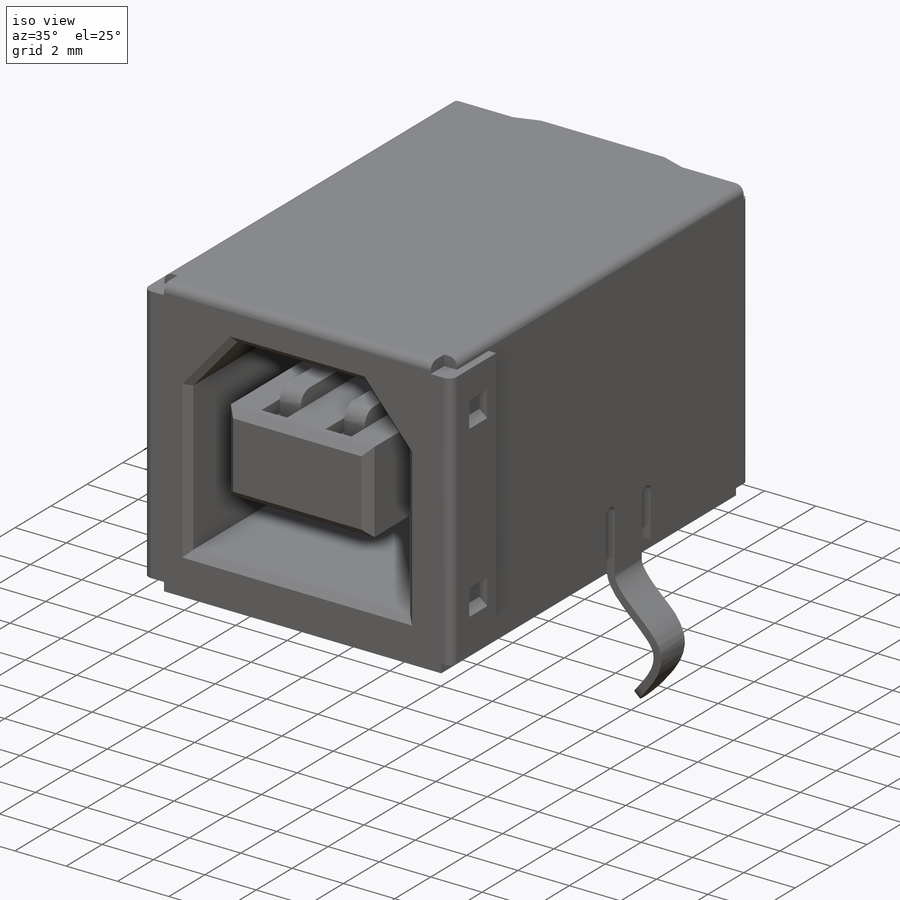
[diagram: iso view]
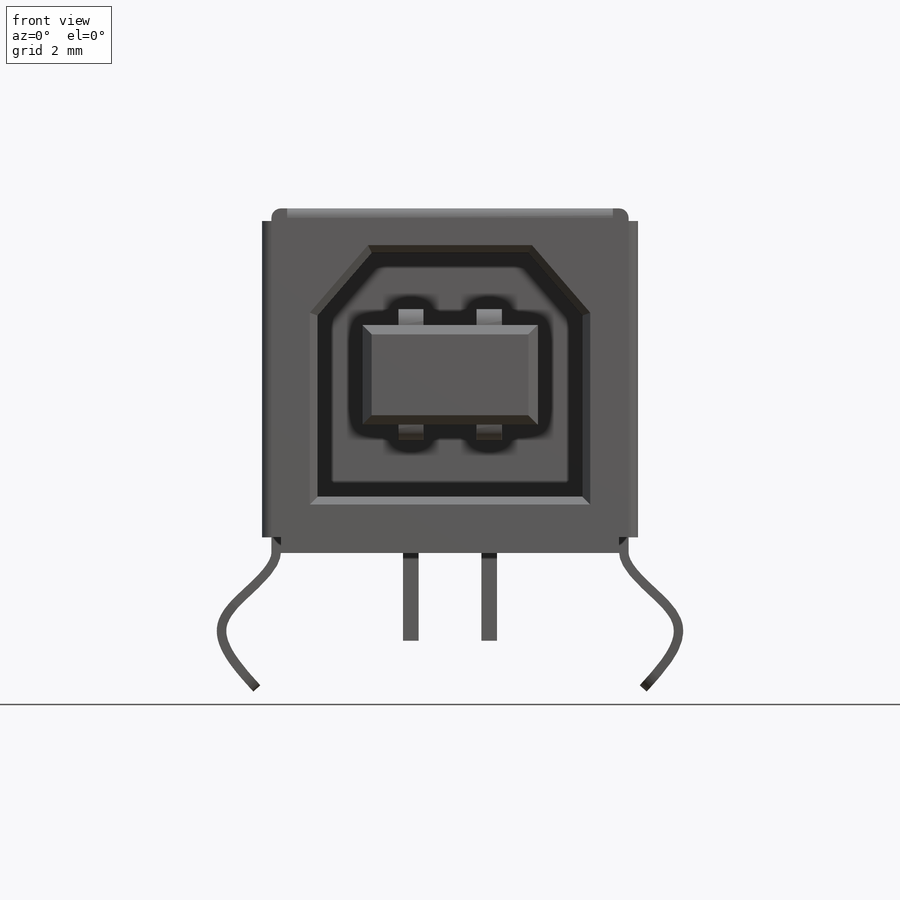
[diagram: front view]
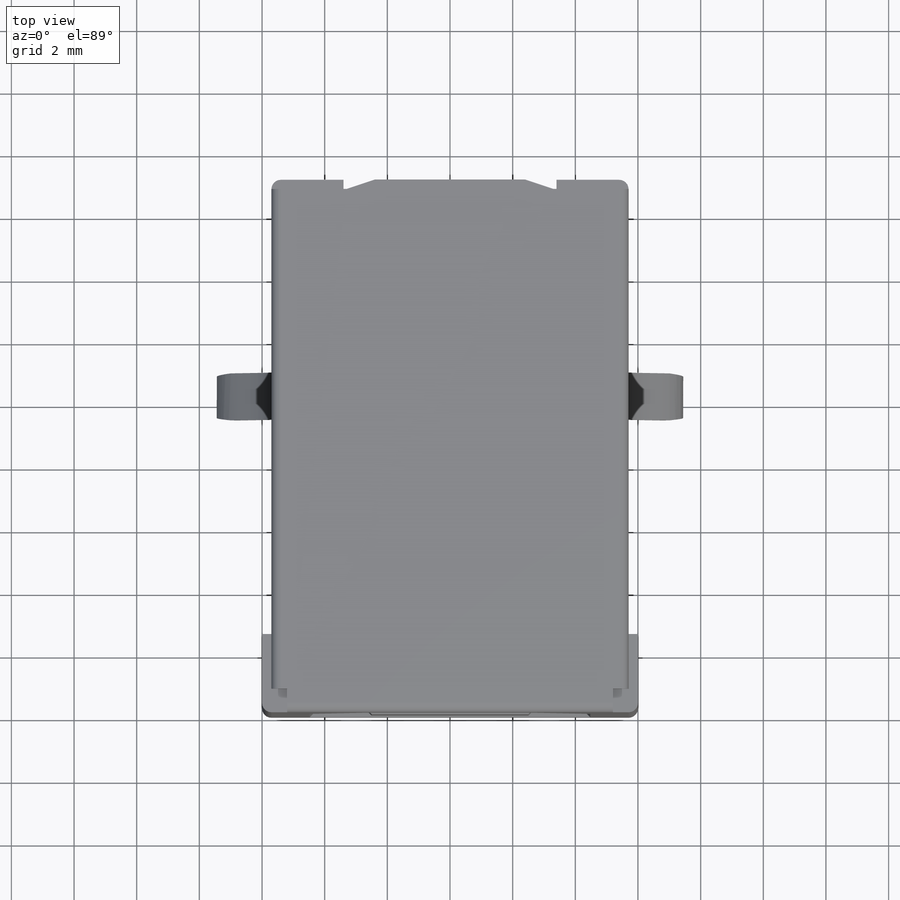
[diagram: top view]
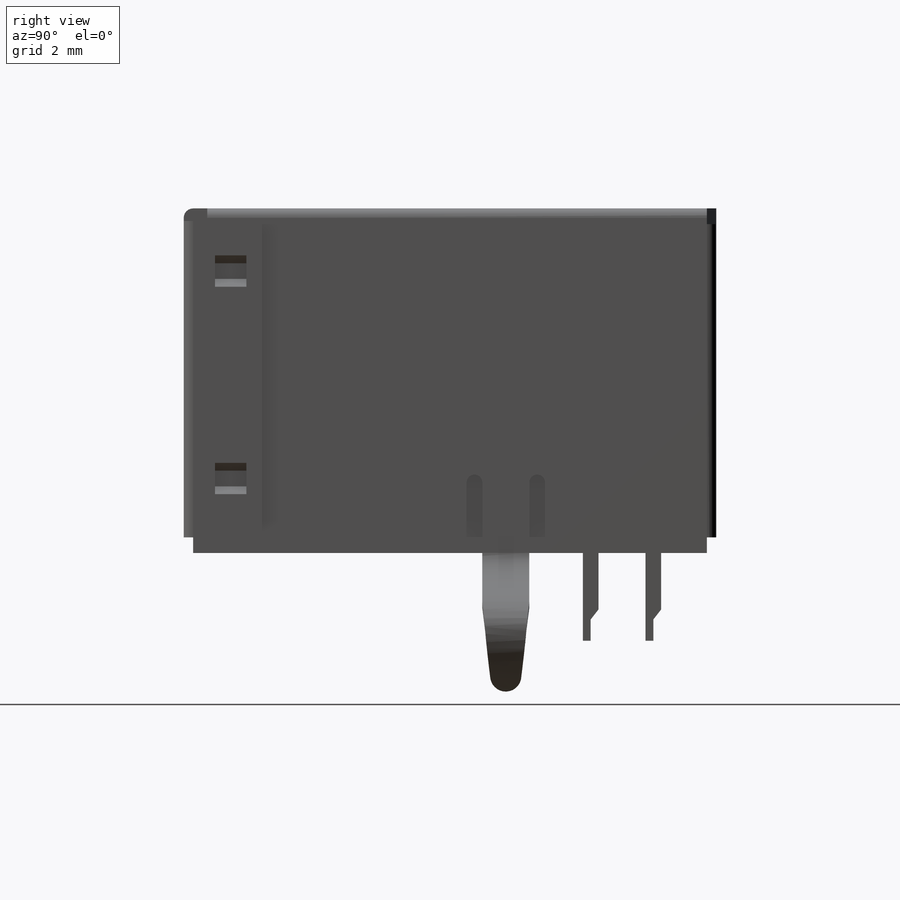
[diagram: right view]
SOLIDWORKS PART (.sldprt)
format: sldprt  version: not decoded by parser v0  size: 888,320 bytes
history: native  units: mm
features: sketch x21, cut_extrude x13, mirror x10, extrude x4, fillet x4, plane x3, chamfer x2, material x1, surface_op x1 (+11 scaffold rows collapsed)
feature tree (70):
  scaffold x11  (default folders/planes/origin — collapsed)
  material  "Material <sin especificar>"
  sketch  "Sketch1"  dims[D1=12.0mm D2=6.0mm D3=11.0mm]
  extrude  "Extrude1"  Depth=17mm
  sketch  "Sketch2"  dims[D1=5.69mm]
  sketch  "Sketch3"  dims[D1=7.78mm D2=3.89mm D3=8.45mm D4=4.225mm D5=5.0mm D6=2.5mm D7=2.0mm]
  cut_extrude  "Cut-Extrude1"  Depth=11.5mm
  sketch  "Sketch4"  dims[D1=0.4mm D2=0.5mm D3=2.5mm]
  cut_extrude  "Cut-Extrude2"  Depth=0.3mm
  mirror  "Mirror1"
  fillet  "Fillet1"  Radius=0.3mm
  chamfer  "Chamfer1"  Distance=0.25mm Angle=45deg
  sketch  "Sketch5"  dims[c1.D1=5.6mm c1.D2=3.18mm c1.D3=5.6mm c2.D3=90.0deg c3.D3=1.59mm c3.D4=2.8mm]
  extrude  "Extrude2"  [1 undecoded]
  chamfer  "Chamfer2"  Distance=0.3mm Angle=45deg
  sketch  "Sketch6"  dims[D1=0.3mm]
  cut_extrude  "Cut-Extrude4"  [1 undecoded]
  sketch  "Sketch7"  dims[D1=0.3mm D2=11.4mm]
  cut_extrude  "Cut-Extrude5"  [1 undecoded]
  mirror  "Mirror2"
  plane  "Plane1"  Offset=10.28mm
  sketch  "Sketch8"  dims[D1=4.22mm D2=7.13mm D3=6.055mm]
  surface_op  "Surface-Extrude1"
  sketch  "Sketch10"  dims[c1.D1=1.0mm c1.D2=3.72mm c1.D3=~1.754239mm c1.D4=2.5mm c1.D5=2.5mm c2.D1=0.3mm]
  sketch  "Sketch11"  dims[D1=0.75mm]
  cut_extrude  "Cut-Extrude6"  Depth=0.5mm
  mirror  "Mirror6"
  fillet  "Fillet2"  Radius=0.3mm
  sketch  "Sketch12"  dims[D1=0.3mm]
  cut_extrude  "Cut-Extrude7"  Depth=0.5mm
  mirror  "Mirror8"
  sketch  "Sketch13"  dims[D1=1.0mm D2=0.1mm D3=0.3mm]
  cut_extrude  "Cut-Extrude8"  [1 undecoded]
  sketch  "Sketch14"  dims[D1=0.3mm D2=16.7mm]
  cut_extrude  "Cut-Extrude9"  [1 undecoded]
  fillet  "Fillet3"  Radius=0.3mm
  sketch  "Sketch15"  dims[D1=0.5mm D2=0.5mm D3=1.5mm D4=1.5mm D5=12.74mm]
  extrude  "Extrude3"  Depth=2.8mm
  plane  "Plane2"  Offset=1mm
  sketch  "Sketch17"  dims[D1=1.0mm D2=0.25mm D3=0.25mm D4=1.5mm]
  cut_extrude  "Cut-Extrude10"  Depth=1mm
  plane  "Plane3"  Offset=5.69mm
  mirror  "Mirror11"
  sketch  "Sketch18"
  cut_extrude  "Cut-Extrude11"  [1 undecoded]
  mirror  "Mirror13"
  sketch  "Sketch19"  dims[c1.D1=1.0mm c1.D2=1.0mm c1.D3=0.25mm c1.D4=~0.408829mm c2.D4=38.0deg c2.D5=~0.319985mm c3.D5=38.0deg c3.D6=0.25mm]
  cut_extrude  "Cut-Extrude12"  [1 undecoded]
  sketch  "Sketch20"  dims[D1=0.92mm D4=2.3mm D2=2.5mm D3=1.25mm D5=12.04mm D6=6.02mm D7=10.28mm D8=2.71mm D9=4.71mm]
  sketch  "Sketch21"  dims[c1.D1=1.0mm c1.D2=1.25mm c1.D3=0.5mm c1.D4=~16.969038mm c2.D3=0.5mm c2.D4=0.75mm]
  cut_extrude  "Cut-Extrude13"  Depth=11mm
  sketch  "Sketch22"  dims[D1=0.1mm D2=0.1mm D3=10.0mm D4=0.1mm]
  extrude  "Extrude4"  Depth=1mm
  fillet  "Fillet4"  Radius=0.5mm
  mirror  "Mirror14"
  mirror  "Mirror15"
  sketch  "Sketch23"  dims[D1=0.25mm D2=1.75mm]
  cut_extrude  "Cut-Extrude14"  Depth=0.3mm
  mirror  "Mirror16"
  mirror  "Mirror17"
decode coverage: 36 of 55 modeling features carry decoded parameters
note: ~ marks probable driven/reference dimensions
note: 7 parameter values undecoded
summary: no parameter record found for 7 features
note: suppression state not decoded; provenance and decode notes live in map.json
